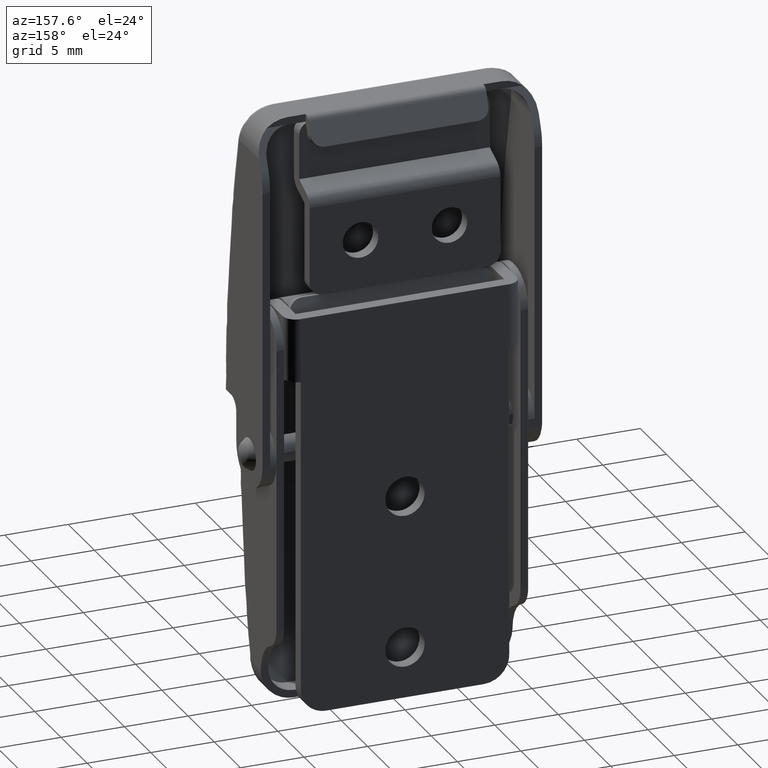
[diagram: clean part render]
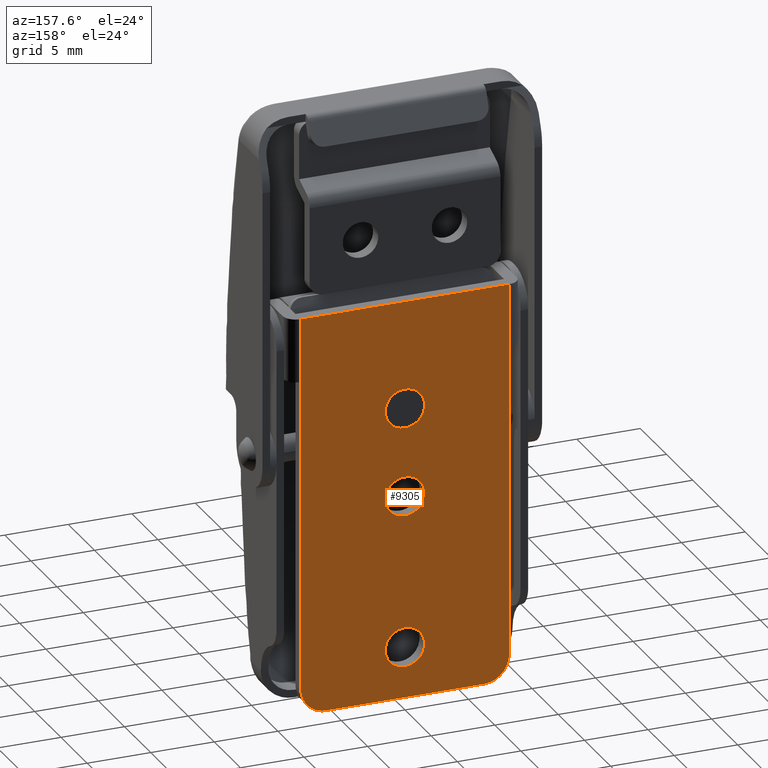
[diagram: same view with one face highlighted and labeled with its STEP entity id]
A machine part, auxiliary view. The second image highlights one B-rep face of the part: STEP entity #9305.
In plain terms, the highlighted face is a freeform B-spline surface patch.
Its self-contained STEP definition (entity closure, byte-faithful):
#7766=CARTESIAN_POINT('',(1.545221867339734,1.072926E-010,6.878388400778022));
#7767=VERTEX_POINT('',#7766);
#7773=CARTESIAN_POINT('',(9.691803E-012,-2.472689E-012,5.450000000000000));
#7774=VERTEX_POINT('',#7773);
#7775=CARTESIAN_POINT('',(9.691803E-012,-2.472689E-012,5.450000000000000));
#7776=CARTESIAN_POINT('',(1.432805260526234,-2.472689E-012,5.450000000000001));
#7777=CARTESIAN_POINT('',(1.545221867339735,1.072926E-010,6.878388400778022));
#7785=(BOUNDED_CURVE()B_SPLINE_CURVE(2,(#7775,#7776,#7777),.UNSPECIFIED.,.F.,.U.)B_SPLINE_CURVE_WITH_KNOTS((3,3),(0.0,0.236331300447454),.UNSPECIFIED.)CURVE()GEOMETRIC_REPRESENTATION_ITEM()RATIONAL_B_SPLINE_CURVE((1.0,0.723120658822304,0.969723355785081))REPRESENTATION_ITEM(''));
#7786=EDGE_CURVE('',#7774,#7767,#7785,.T.);
#7788=CARTESIAN_POINT('',(-1.545221867320350,1.072924E-010,7.121611599221980));
#7789=VERTEX_POINT('',#7788);
#7790=CARTESIAN_POINT('',(-1.545221867320350,1.072924E-010,7.121611599221980));
#7791=CARTESIAN_POINT('',(-1.549999999990309,-2.472689E-012,7.060899666700972));
#7792=CARTESIAN_POINT('',(-1.549999999990308,-2.472689E-012,7.0));
#7793=CARTESIAN_POINT('',(-1.549999999990308,-2.472689E-012,5.450000000000000));
#7794=CARTESIAN_POINT('',(9.691803E-012,-2.472689E-012,5.450000000000000));
#7802=(BOUNDED_CURVE()B_SPLINE_CURVE(2,(#7790,#7791,#7792,#7793,#7794),.UNSPECIFIED.,.F.,.U.)B_SPLINE_CURVE_WITH_KNOTS((3,2,3),(0.736331300447454,0.750000000000000,1.0),.UNSPECIFIED.)CURVE()GEOMETRIC_REPRESENTATION_ITEM()RATIONAL_B_SPLINE_CURVE((0.969723355785081,0.983986122364243,1.0,0.707106781186547,1.0))REPRESENTATION_ITEM(''));
#7803=EDGE_CURVE('',#7789,#7774,#7802,.T.);
#7840=CARTESIAN_POINT('',(9.691803E-012,-2.472689E-012,8.550000000000001));
#7841=VERTEX_POINT('',#7840);
#7842=CARTESIAN_POINT('',(9.691803E-012,-2.472689E-012,8.550000000000001));
#7843=CARTESIAN_POINT('',(-1.432805260506854,-2.472689E-012,8.549999999999999));
#7844=CARTESIAN_POINT('',(-1.545221867320350,1.072924E-010,7.121611599221980));
#7852=(BOUNDED_CURVE()B_SPLINE_CURVE(2,(#7842,#7843,#7844),.UNSPECIFIED.,.F.,.U.)B_SPLINE_CURVE_WITH_KNOTS((3,3),(0.500000000000000,0.736331300447454),.UNSPECIFIED.)CURVE()GEOMETRIC_REPRESENTATION_ITEM()RATIONAL_B_SPLINE_CURVE((1.0,0.723120658822304,0.969723355785082))REPRESENTATION_ITEM(''));
#7853=EDGE_CURVE('',#7841,#7789,#7852,.T.);
#7855=CARTESIAN_POINT('',(1.545221867339734,1.072926E-010,6.878388400778022));
#7856=CARTESIAN_POINT('',(1.550000000009692,-2.472689E-012,6.939100333299030));
#7857=CARTESIAN_POINT('',(1.550000000009692,-2.472689E-012,7.0));
#7858=CARTESIAN_POINT('',(1.550000000009692,-2.472689E-012,8.550000000000001));
#7859=CARTESIAN_POINT('',(9.691803E-012,-2.472689E-012,8.550000000000001));
#7867=(BOUNDED_CURVE()B_SPLINE_CURVE(2,(#7855,#7856,#7857,#7858,#7859),.UNSPECIFIED.,.F.,.U.)B_SPLINE_CURVE_WITH_KNOTS((3,2,3),(0.236331300447454,0.250000000000000,0.500000000000000),.UNSPECIFIED.)CURVE()GEOMETRIC_REPRESENTATION_ITEM()RATIONAL_B_SPLINE_CURVE((0.969723355785081,0.983986122364243,1.0,0.707106781186547,1.0))REPRESENTATION_ITEM(''));
#7868=EDGE_CURVE('',#7767,#7841,#7867,.T.);
#7930=CARTESIAN_POINT('',(1.547108937544573,-4.440859E-012,-0.094625236431472));
#7931=VERTEX_POINT('',#7930);
#7937=CARTESIAN_POINT('',(3.700185E-015,-4.440892E-012,-1.550000000000000));
#7938=VERTEX_POINT('',#7937);
#7939=CARTESIAN_POINT('',(3.700185E-015,-4.440892E-012,-1.550000000000000));
#7940=CARTESIAN_POINT('',(1.458094403415955,-4.440892E-012,-1.550000000000000));
#7941=CARTESIAN_POINT('',(1.547108937544574,-4.440859E-012,-0.094625236431472));
#7949=(BOUNDED_CURVE()B_SPLINE_CURVE(2,(#7939,#7940,#7941),.UNSPECIFIED.,.F.,.U.)B_SPLINE_CURVE_WITH_KNOTS((3,3),(0.500000000000000,0.739332962207965),.UNSPECIFIED.)CURVE()GEOMETRIC_REPRESENTATION_ITEM()RATIONAL_B_SPLINE_CURVE((1.0,0.719603993323003,0.976072041600327))REPRESENTATION_ITEM(''));
#7950=EDGE_CURVE('',#7938,#7931,#7949,.T.);
#7952=CARTESIAN_POINT('',(-1.539164765849715,-4.440859E-012,0.182953063835451));
#7953=VERTEX_POINT('',#7952);
#7954=CARTESIAN_POINT('',(-1.539164765849715,-4.440859E-012,0.182953063835451));
#7955=CARTESIAN_POINT('',(-1.549999999999996,-4.440892E-012,0.091797385579178));
#7956=CARTESIAN_POINT('',(-1.549999999999996,-4.440892E-012,0.0));
#7957=CARTESIAN_POINT('',(-1.549999999999997,-4.440892E-012,-1.550000000000001));
#7958=CARTESIAN_POINT('',(3.700185E-015,-4.440892E-012,-1.550000000000000));
#7966=(BOUNDED_CURVE()B_SPLINE_CURVE(2,(#7954,#7955,#7956,#7957,#7958),.UNSPECIFIED.,.F.,.U.)B_SPLINE_CURVE_WITH_KNOTS((3,2,3),(0.229562473489846,0.250000000000000,0.500000000000000),.UNSPECIFIED.)CURVE()GEOMETRIC_REPRESENTATION_ITEM()RATIONAL_B_SPLINE_CURVE((0.956026754137321,0.976055948303423,1.0,0.707106781186547,1.0))REPRESENTATION_ITEM(''));
#7967=EDGE_CURVE('',#7953,#7938,#7966,.T.);
#8011=CARTESIAN_POINT('',(3.700185E-015,-4.440892E-012,1.550000000000000));
#8012=VERTEX_POINT('',#8011);
#8013=CARTESIAN_POINT('',(3.700185E-015,-4.440892E-012,1.550000000000000));
#8014=CARTESIAN_POINT('',(-1.376670515012990,-4.440892E-012,1.550000000000001));
#8015=CARTESIAN_POINT('',(-1.539164765849715,-4.440859E-012,0.182953063835451));
#8023=(BOUNDED_CURVE()B_SPLINE_CURVE(2,(#8013,#8014,#8015),.UNSPECIFIED.,.F.,.U.)B_SPLINE_CURVE_WITH_KNOTS((3,3),(0.0,0.229562473489846),.UNSPECIFIED.)CURVE()GEOMETRIC_REPRESENTATION_ITEM()RATIONAL_B_SPLINE_CURVE((1.0,0.731050832883124,0.956026754137321))REPRESENTATION_ITEM(''));
#8024=EDGE_CURVE('',#8012,#7953,#8023,.T.);
#8026=CARTESIAN_POINT('',(1.547108937544573,-4.440859E-012,-0.094625236431472));
#8027=CARTESIAN_POINT('',(1.550000000000004,-4.440892E-012,-0.047356783265684));
#8028=CARTESIAN_POINT('',(1.550000000000004,-4.440892E-012,0.0));
#8029=CARTESIAN_POINT('',(1.550000000000003,-4.440892E-012,1.550000000000001));
#8030=CARTESIAN_POINT('',(3.700185E-015,-4.440892E-012,1.550000000000000));
#8038=(BOUNDED_CURVE()B_SPLINE_CURVE(2,(#8026,#8027,#8028,#8029,#8030),.UNSPECIFIED.,.F.,.U.)B_SPLINE_CURVE_WITH_KNOTS((3,2,3),(0.739332962207965,0.750000000000000,1.0),.UNSPECIFIED.)CURVE()GEOMETRIC_REPRESENTATION_ITEM()RATIONAL_B_SPLINE_CURVE((0.976072041600326,0.987502787863544,1.0,0.707106781186547,1.0))REPRESENTATION_ITEM(''));
#8039=EDGE_CURVE('',#7931,#8012,#8038,.T.);
#8116=CARTESIAN_POINT('',(1.547108937541134,-4.440859E-012,-12.094625236431471));
#8117=VERTEX_POINT('',#8116);
#8123=CARTESIAN_POINT('',(-3.435918E-012,-4.440892E-012,-13.550000000000001));
#8124=VERTEX_POINT('',#8123);
#8125=CARTESIAN_POINT('',(-3.435918E-012,-4.440892E-012,-13.550000000000001));
#8126=CARTESIAN_POINT('',(1.458094403412515,-4.440892E-012,-13.549999999999999));
#8127=CARTESIAN_POINT('',(1.547108937541134,-4.440859E-012,-12.094625236431478));
#8135=(BOUNDED_CURVE()B_SPLINE_CURVE(2,(#8125,#8126,#8127),.UNSPECIFIED.,.F.,.U.)B_SPLINE_CURVE_WITH_KNOTS((3,3),(0.500000000000000,0.739332962207965),.UNSPECIFIED.)CURVE()GEOMETRIC_REPRESENTATION_ITEM()RATIONAL_B_SPLINE_CURVE((1.0,0.719603993323003,0.976072041600327))REPRESENTATION_ITEM(''));
#8136=EDGE_CURVE('',#8124,#8117,#8135,.T.);
#8138=CARTESIAN_POINT('',(-1.539164765853155,-4.440859E-012,-11.817046936164550));
#8139=VERTEX_POINT('',#8138);
#8140=CARTESIAN_POINT('',(-1.539164765853155,-4.440859E-012,-11.817046936164550));
#8141=CARTESIAN_POINT('',(-1.550000000003436,-4.440892E-012,-11.908202614420825));
#8142=CARTESIAN_POINT('',(-1.550000000003436,-4.440892E-012,-12.0));
#8143=CARTESIAN_POINT('',(-1.550000000003436,-4.440892E-012,-13.549999999999999));
#8144=CARTESIAN_POINT('',(-3.435918E-012,-4.440892E-012,-13.550000000000001));
#8152=(BOUNDED_CURVE()B_SPLINE_CURVE(2,(#8140,#8141,#8142,#8143,#8144),.UNSPECIFIED.,.F.,.U.)B_SPLINE_CURVE_WITH_KNOTS((3,2,3),(0.229562473489846,0.250000000000000,0.500000000000000),.UNSPECIFIED.)CURVE()GEOMETRIC_REPRESENTATION_ITEM()RATIONAL_B_SPLINE_CURVE((0.956026754137320,0.976055948303423,1.0,0.707106781186547,1.0))REPRESENTATION_ITEM(''));
#8153=EDGE_CURVE('',#8139,#8124,#8152,.T.);
#8197=CARTESIAN_POINT('',(-3.435918E-012,-4.440892E-012,-10.449999999999999));
#8198=VERTEX_POINT('',#8197);
#8199=CARTESIAN_POINT('',(-3.435918E-012,-4.440892E-012,-10.449999999999999));
#8200=CARTESIAN_POINT('',(-1.376670515016429,-4.440892E-012,-10.450000000000003));
#8201=CARTESIAN_POINT('',(-1.539164765853155,-4.440859E-012,-11.817046936164550));
#8209=(BOUNDED_CURVE()B_SPLINE_CURVE(2,(#8199,#8200,#8201),.UNSPECIFIED.,.F.,.U.)B_SPLINE_CURVE_WITH_KNOTS((3,3),(0.0,0.229562473489846),.UNSPECIFIED.)CURVE()GEOMETRIC_REPRESENTATION_ITEM()RATIONAL_B_SPLINE_CURVE((1.0,0.731050832883124,0.956026754137320))REPRESENTATION_ITEM(''));
#8210=EDGE_CURVE('',#8198,#8139,#8209,.T.);
#8212=CARTESIAN_POINT('',(1.547108937541134,-4.440859E-012,-12.094625236431478));
#8213=CARTESIAN_POINT('',(1.549999999996564,-4.440892E-012,-12.047356783265682));
#8214=CARTESIAN_POINT('',(1.549999999996564,-4.440892E-012,-12.0));
#8215=CARTESIAN_POINT('',(1.549999999996564,-4.440892E-012,-10.450000000000001));
#8216=CARTESIAN_POINT('',(-3.435918E-012,-4.440892E-012,-10.449999999999999));
#8224=(BOUNDED_CURVE()B_SPLINE_CURVE(2,(#8212,#8213,#8214,#8215,#8216),.UNSPECIFIED.,.F.,.U.)B_SPLINE_CURVE_WITH_KNOTS((3,2,3),(0.739332962207965,0.750000000000000,1.0),.UNSPECIFIED.)CURVE()GEOMETRIC_REPRESENTATION_ITEM()RATIONAL_B_SPLINE_CURVE((0.976072041600325,0.987502787863544,1.0,0.707106781186547,1.0))REPRESENTATION_ITEM(''));
#8225=EDGE_CURVE('',#8117,#8198,#8224,.T.);
#8628=CARTESIAN_POINT('',(8.200000000064820,4.041071E-012,-13.999999999971500));
#8629=VERTEX_POINT('',#8628);
#8630=CARTESIAN_POINT('',(6.200000000064819,4.618528E-012,-15.999999999971500));
#8631=VERTEX_POINT('',#8630);
#8632=CARTESIAN_POINT('',(8.200000000064819,4.041071E-012,-13.999999999971500));
#8633=CARTESIAN_POINT('',(8.200000000064819,4.618528E-012,-15.999999999971502));
#8634=CARTESIAN_POINT('',(6.200000000064819,4.618528E-012,-15.999999999971500));
#8642=(BOUNDED_CURVE()B_SPLINE_CURVE(2,(#8632,#8633,#8634),.UNSPECIFIED.,.F.,.U.)CURVE()GEOMETRIC_REPRESENTATION_ITEM()QUASI_UNIFORM_CURVE()RATIONAL_B_SPLINE_CURVE((1.0,0.707106781186548,1.0))REPRESENTATION_ITEM(''));
#8643=EDGE_CURVE('',#8629,#8631,#8642,.T.);
#8689=CARTESIAN_POINT('',(-6.199999999989550,4.618528E-012,-15.999999999971500));
#8690=VERTEX_POINT('',#8689);
#8691=CARTESIAN_POINT('',(-8.199999999989551,4.041071E-012,-13.999999999971500));
#8692=VERTEX_POINT('',#8691);
#8693=CARTESIAN_POINT('',(-6.199999999989601,4.618528E-012,-15.999999999971500));
#8694=CARTESIAN_POINT('',(-8.199999999989601,4.618528E-012,-15.999999999971502));
#8695=CARTESIAN_POINT('',(-8.199999999989601,4.041071E-012,-13.999999999971500));
#8703=(BOUNDED_CURVE()B_SPLINE_CURVE(2,(#8693,#8694,#8695),.UNSPECIFIED.,.F.,.U.)CURVE()GEOMETRIC_REPRESENTATION_ITEM()QUASI_UNIFORM_CURVE()RATIONAL_B_SPLINE_CURVE((1.0,0.707106781186548,1.0))REPRESENTATION_ITEM(''));
#8704=EDGE_CURVE('',#8690,#8692,#8703,.T.);
#8752=CARTESIAN_POINT('',(-8.199999999893960,-4.476419E-012,15.500000000021350));
#8753=VERTEX_POINT('',#8752);
#8769=CARTESIAN_POINT('',(-8.199999999989551,-3.032777E-012,10.500000000020600));
#8770=VERTEX_POINT('',#8769);
#8771=CARTESIAN_POINT('',(-8.199999999989551,-3.032777E-012,10.500000000020600));
#8772=CARTESIAN_POINT('',(-8.199999999893960,-4.476419E-012,15.500000000021350));
#8773=QUASI_UNIFORM_CURVE('',1,(#8771,#8772),.UNSPECIFIED.,.F.,.U.);
#8774=EDGE_CURVE('',#8770,#8753,#8773,.T.);
#8813=CARTESIAN_POINT('',(8.200000000064820,-3.032777E-012,10.500000000021320));
#8814=VERTEX_POINT('',#8813);
#8830=CARTESIAN_POINT('',(8.200000000040291,-4.476419E-012,15.500000000021350));
#8831=VERTEX_POINT('',#8830);
#8832=CARTESIAN_POINT('',(8.200000000040291,-4.476419E-012,15.500000000021350));
#8833=CARTESIAN_POINT('',(8.200000000064820,-3.032777E-012,10.500000000021320));
#8834=QUASI_UNIFORM_CURVE('',1,(#8832,#8833),.UNSPECIFIED.,.F.,.U.);
#8835=EDGE_CURVE('',#8831,#8814,#8834,.T.);
#9157=CARTESIAN_POINT('',(-8.199999999989551,-3.032777E-012,10.500000000020600));
#9158=CARTESIAN_POINT('',(-8.199999999989551,4.041071E-012,-13.999999999971500));
#9159=QUASI_UNIFORM_CURVE('',1,(#9157,#9158),.UNSPECIFIED.,.F.,.U.);
#9160=EDGE_CURVE('',#8770,#8692,#9159,.T.);
#9179=CARTESIAN_POINT('',(-8.199999999893960,-4.476419E-012,15.500000000021350));
#9180=CARTESIAN_POINT('',(8.200000000040291,-4.476419E-012,15.500000000021350));
#9181=QUASI_UNIFORM_CURVE('',1,(#9179,#9180),.UNSPECIFIED.,.F.,.U.);
#9182=EDGE_CURVE('',#8753,#8831,#9181,.T.);
#9209=CARTESIAN_POINT('',(-6.199999999989550,4.618528E-012,-15.999999999971500));
#9210=CARTESIAN_POINT('',(6.200000000064819,4.618528E-012,-15.999999999971500));
#9211=QUASI_UNIFORM_CURVE('',1,(#9209,#9210),.UNSPECIFIED.,.F.,.U.);
#9212=EDGE_CURVE('',#8690,#8631,#9211,.T.);
#9229=CARTESIAN_POINT('',(8.200000000064820,-3.032777E-012,10.500000000021320));
#9230=CARTESIAN_POINT('',(8.200000000064820,4.041071E-012,-13.999999999971500));
#9231=QUASI_UNIFORM_CURVE('',1,(#9229,#9230),.UNSPECIFIED.,.F.,.U.);
#9232=EDGE_CURVE('',#8814,#8629,#9231,.T.);
#9272=CARTESIAN_POINT('',(-9.019179814254416,-4.930712E-012,17.073424938967879));
#9273=CARTESIAN_POINT('',(-9.019179814254416,5.072821E-012,-17.573425783813871));
#9274=CARTESIAN_POINT('',(9.019180400839391,-4.930712E-012,17.073424938967879));
#9275=CARTESIAN_POINT('',(9.019180400839391,5.072821E-012,-17.573425783813871));
#9276=B_SPLINE_SURFACE_WITH_KNOTS('',1,1,((#9272,#9274),(#9273,#9275)),.UNSPECIFIED.,.F.,.F.,.U.,(2,2),(2,2),(0.0,34.646850722781750),(0.0,18.038360215093810),.UNSPECIFIED.);
#9277=ORIENTED_EDGE('',*,*,#9212,.F.);
#9278=ORIENTED_EDGE('',*,*,#8704,.T.);
#9279=ORIENTED_EDGE('',*,*,#9160,.F.);
#9280=ORIENTED_EDGE('',*,*,#8774,.T.);
#9281=ORIENTED_EDGE('',*,*,#9182,.T.);
#9282=ORIENTED_EDGE('',*,*,#8835,.T.);
#9283=ORIENTED_EDGE('',*,*,#9232,.T.);
#9284=ORIENTED_EDGE('',*,*,#8643,.T.);
#9285=EDGE_LOOP('',(#9277,#9278,#9279,#9280,#9281,#9282,#9283,#9284));
#9286=FACE_OUTER_BOUND('',#9285,.T.);
#9287=ORIENTED_EDGE('',*,*,#8136,.T.);
#9288=ORIENTED_EDGE('',*,*,#8225,.T.);
#9289=ORIENTED_EDGE('',*,*,#8210,.T.);
#9290=ORIENTED_EDGE('',*,*,#8153,.T.);
#9291=EDGE_LOOP('',(#9287,#9288,#9289,#9290));
#9292=FACE_BOUND('',#9291,.T.);
#9293=ORIENTED_EDGE('',*,*,#7950,.T.);
#9294=ORIENTED_EDGE('',*,*,#8039,.T.);
#9295=ORIENTED_EDGE('',*,*,#8024,.T.);
#9296=ORIENTED_EDGE('',*,*,#7967,.T.);
#9297=EDGE_LOOP('',(#9293,#9294,#9295,#9296));
#9298=FACE_BOUND('',#9297,.T.);
#9299=ORIENTED_EDGE('',*,*,#7853,.T.);
#9300=ORIENTED_EDGE('',*,*,#7803,.T.);
#9301=ORIENTED_EDGE('',*,*,#7786,.T.);
#9302=ORIENTED_EDGE('',*,*,#7868,.T.);
#9303=EDGE_LOOP('',(#9299,#9300,#9301,#9302));
#9304=FACE_BOUND('',#9303,.T.);
#9305=ADVANCED_FACE('',(#9286,#9292,#9298,#9304),#9276,.F.);